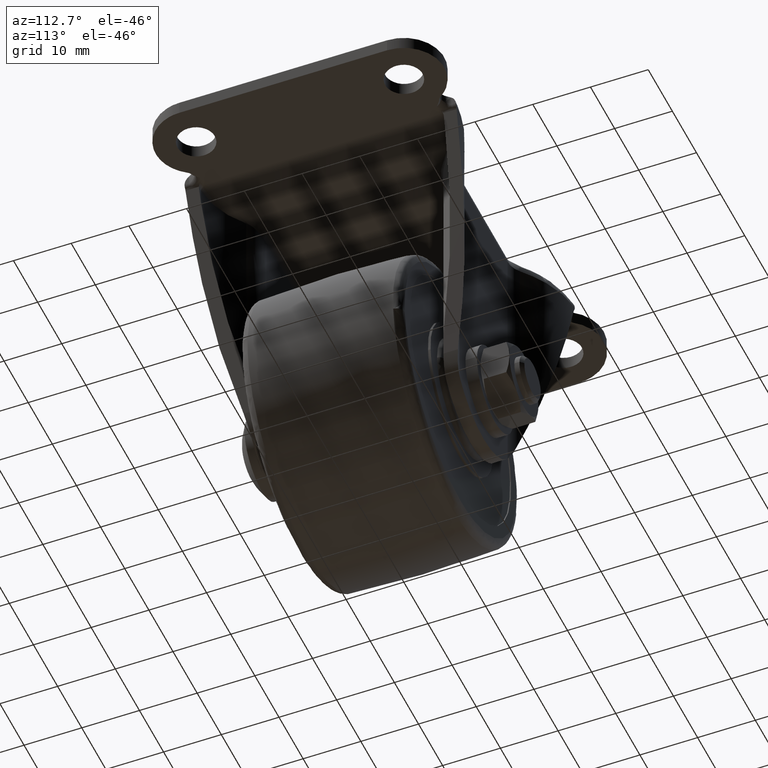
[diagram: clean part render]
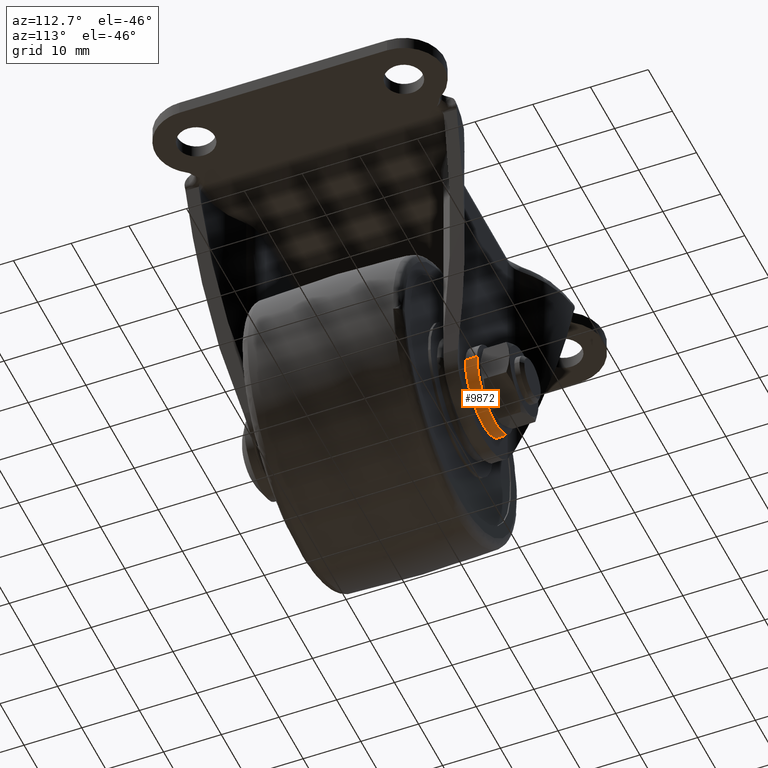
[diagram: same view with one face highlighted and labeled with its STEP entity id]
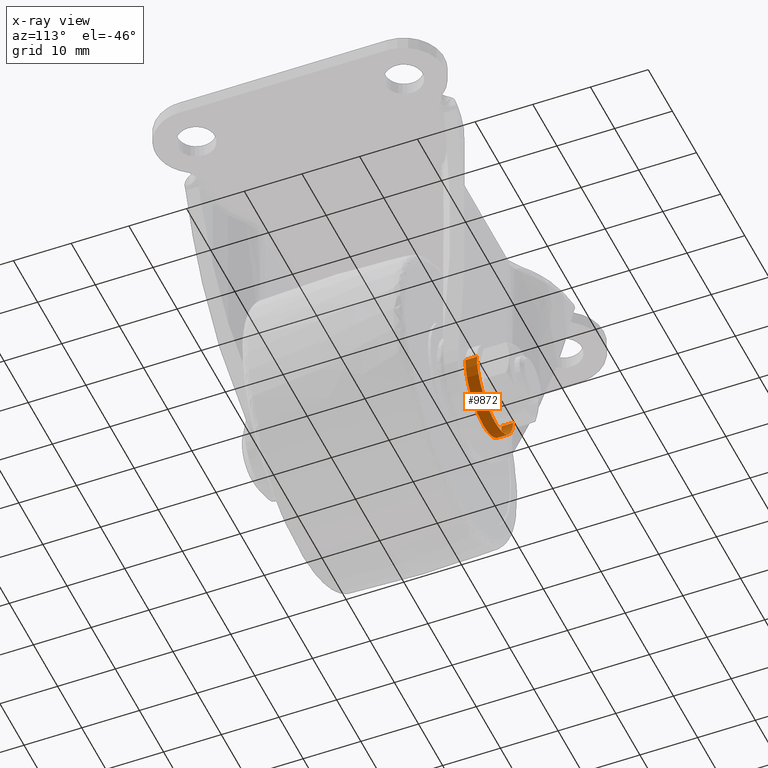
[diagram: x-ray of the same camera — body ghosted, the highlighted face saturated]
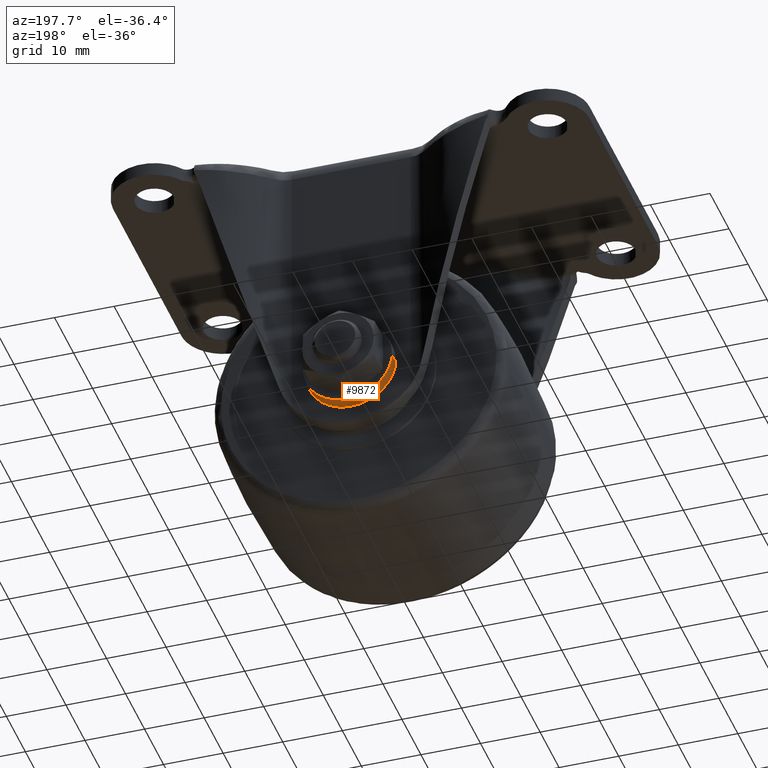
[diagram: same view with one face highlighted and labeled with its STEP entity id]
A machine part, auxiliary view. The second image highlights one B-rep face of the part: STEP entity #9872.
The next image is the same camera in x-ray: the body ghosted, the highlighted face saturated — about 0% of this face is hidden behind the body in this view.
A second angle (auxiliary view) of the same face is appended — the face is thin or edge-on in the first view.
In plain terms, the highlighted face is a freeform B-spline surface patch.
Its self-contained STEP definition (entity closure, byte-faithful):
#9611=CARTESIAN_POINT('',(-7.486010988161311,18.0,-43.457864046555400));
#9612=VERTEX_POINT('',#9611);
#9630=CARTESIAN_POINT('',(0.0,18.0,-50.499999999999993));
#9631=VERTEX_POINT('',#9630);
#9632=CARTESIAN_POINT('',(0.0,18.0,-50.499999999999993));
#9633=CARTESIAN_POINT('',(-7.055295501751188,18.000000000000007,-50.500000000000000));
#9634=CARTESIAN_POINT('',(-7.486010988161312,18.0,-43.457864046555393));
#9642=(BOUNDED_CURVE()B_SPLINE_CURVE(2,(#9632,#9633,#9634),.UNSPECIFIED.,.F.,.U.)B_SPLINE_CURVE_WITH_KNOTS((3,3),(0.500000000000000,0.739332962240955),.UNSPECIFIED.)CURVE()GEOMETRIC_REPRESENTATION_ITEM()RATIONAL_B_SPLINE_CURVE((1.0,0.719603993284353,0.976072041671029))REPRESENTATION_ITEM(''));
#9643=EDGE_CURVE('',#9631,#9612,#9642,.T.);
#9645=CARTESIAN_POINT('',(7.486010988161312,18.0,-42.542135953444600));
#9646=VERTEX_POINT('',#9645);
#9647=CARTESIAN_POINT('',(7.486010988161312,18.0,-42.542135953444600));
#9648=CARTESIAN_POINT('',(7.500000000000000,17.999999999999996,-42.770854275238534));
#9649=CARTESIAN_POINT('',(7.500000000000000,18.0,-43.0));
#9650=CARTESIAN_POINT('',(7.500000000000000,18.000000000000007,-50.499999999999993));
#9651=CARTESIAN_POINT('',(0.0,18.0,-50.499999999999993));
#9659=(BOUNDED_CURVE()B_SPLINE_CURVE(2,(#9647,#9648,#9649,#9650,#9651),.UNSPECIFIED.,.F.,.U.)B_SPLINE_CURVE_WITH_KNOTS((3,2,3),(0.239332962240954,0.250000000000000,0.500000000000000),.UNSPECIFIED.)CURVE()GEOMETRIC_REPRESENTATION_ITEM()RATIONAL_B_SPLINE_CURVE((0.976072041671029,0.987502787902194,1.0,0.707106781186547,1.0))REPRESENTATION_ITEM(''));
#9660=EDGE_CURVE('',#9646,#9631,#9659,.T.);
#9806=CARTESIAN_POINT('',(7.486010988164000,17.949999999999999,-42.542135953488582));
#9807=CARTESIAN_POINT('',(7.943875034675429,17.949999999999999,-50.028146941652572));
#9808=CARTESIAN_POINT('',(0.457864046511427,17.949999999999999,-50.486010988163997));
#9809=CARTESIAN_POINT('',(-7.028146941652573,17.949999999999999,-50.943875034675422));
#9810=CARTESIAN_POINT('',(-7.486010988164000,17.949999999999999,-43.457864046511432));
#9811=CARTESIAN_POINT('',(7.486010988164000,20.051250000000000,-42.542135953488582));
#9812=CARTESIAN_POINT('',(7.943875034675429,20.051250000000010,-50.028146941652572));
#9813=CARTESIAN_POINT('',(0.457864046511427,20.051250000000000,-50.486010988163997));
#9814=CARTESIAN_POINT('',(-7.028146941652573,20.051250000000010,-50.943875034675422));
#9815=CARTESIAN_POINT('',(-7.486010988164000,20.051250000000000,-43.457864046511432));
#9823=(BOUNDED_SURFACE()B_SPLINE_SURFACE(2,1,((#9806,#9811),(#9807,#9812),(#9808,#9813),(#9809,#9814),(#9810,#9815)),.UNSPECIFIED.,.F.,.F.,.U.)B_SPLINE_SURFACE_WITH_KNOTS((3,2,3),(2,2),(0.0,12.426406871192849,24.852813742385699),(0.0,2.101250000000007),.UNSPECIFIED.)GEOMETRIC_REPRESENTATION_ITEM()RATIONAL_B_SPLINE_SURFACE(((1.0,1.0),(0.707106781186548,0.707106781186548),(1.0,1.0),(0.707106781186548,0.707106781186548),(1.0,1.0)))REPRESENTATION_ITEM('')SURFACE());
#9824=ORIENTED_EDGE('',*,*,#9660,.T.);
#9825=ORIENTED_EDGE('',*,*,#9643,.T.);
#9826=CARTESIAN_POINT('',(-7.486010988161311,20.0,-43.457864046555400));
#9827=VERTEX_POINT('',#9826);
#9828=CARTESIAN_POINT('',(-7.486010988161311,18.0,-43.457864046555400));
#9829=CARTESIAN_POINT('',(-7.486010988161311,20.0,-43.457864046555400));
#9830=QUASI_UNIFORM_CURVE('',1,(#9828,#9829),.UNSPECIFIED.,.F.,.U.);
#9831=EDGE_CURVE('',#9612,#9827,#9830,.T.);
#9832=ORIENTED_EDGE('',*,*,#9831,.T.);
#9833=CARTESIAN_POINT('',(0.0,20.0,-50.499999999999993));
#9834=VERTEX_POINT('',#9833);
#9835=CARTESIAN_POINT('',(0.0,20.0,-50.499999999999993));
#9836=CARTESIAN_POINT('',(-7.055295501751188,19.999999999999996,-50.500000000000000));
#9837=CARTESIAN_POINT('',(-7.486010988161312,20.000000000000004,-43.457864046555393));
#9845=(BOUNDED_CURVE()B_SPLINE_CURVE(2,(#9835,#9836,#9837),.UNSPECIFIED.,.F.,.U.)B_SPLINE_CURVE_WITH_KNOTS((3,3),(0.500000000000000,0.739332962240955),.UNSPECIFIED.)CURVE()GEOMETRIC_REPRESENTATION_ITEM()RATIONAL_B_SPLINE_CURVE((1.0,0.719603993284353,0.976072041671029))REPRESENTATION_ITEM(''));
#9846=EDGE_CURVE('',#9834,#9827,#9845,.T.);
#9847=ORIENTED_EDGE('',*,*,#9846,.F.);
#9848=CARTESIAN_POINT('',(7.486010988161311,20.0,-42.542135953444600));
#9849=VERTEX_POINT('',#9848);
#9850=CARTESIAN_POINT('',(7.486010988161315,20.0,-42.542135953444607));
#9851=CARTESIAN_POINT('',(7.500000000000000,20.0,-42.770854275238527));
#9852=CARTESIAN_POINT('',(7.500000000000000,20.0,-43.0));
#9853=CARTESIAN_POINT('',(7.500000000000000,20.0,-50.499999999999993));
#9854=CARTESIAN_POINT('',(0.0,20.0,-50.499999999999993));
#9862=(BOUNDED_CURVE()B_SPLINE_CURVE(2,(#9850,#9851,#9852,#9853,#9854),.UNSPECIFIED.,.F.,.U.)B_SPLINE_CURVE_WITH_KNOTS((3,2,3),(0.239332962240955,0.250000000000000,0.500000000000000),.UNSPECIFIED.)CURVE()GEOMETRIC_REPRESENTATION_ITEM()RATIONAL_B_SPLINE_CURVE((0.976072041671030,0.987502787902194,1.0,0.707106781186547,1.0))REPRESENTATION_ITEM(''));
#9863=EDGE_CURVE('',#9849,#9834,#9862,.T.);
#9864=ORIENTED_EDGE('',*,*,#9863,.F.);
#9865=CARTESIAN_POINT('',(7.486010988161312,18.0,-42.542135953444600));
#9866=CARTESIAN_POINT('',(7.486010988161311,20.0,-42.542135953444600));
#9867=QUASI_UNIFORM_CURVE('',1,(#9865,#9866),.UNSPECIFIED.,.F.,.U.);
#9868=EDGE_CURVE('',#9646,#9849,#9867,.T.);
#9869=ORIENTED_EDGE('',*,*,#9868,.F.);
#9870=EDGE_LOOP('',(#9824,#9825,#9832,#9847,#9864,#9869));
#9871=FACE_OUTER_BOUND('',#9870,.T.);
#9872=ADVANCED_FACE('',(#9871),#9823,.T.);